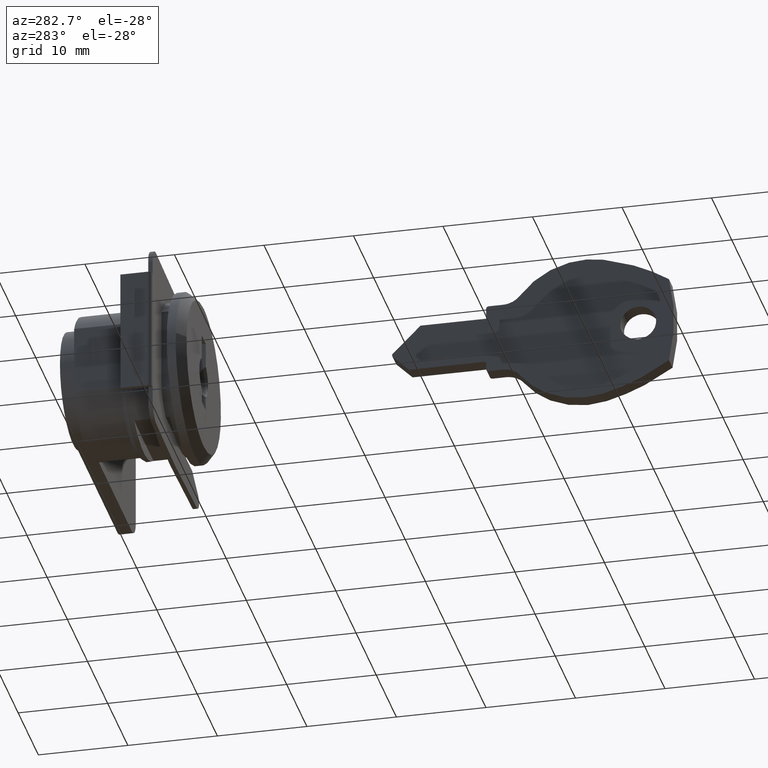
[diagram: clean part render]
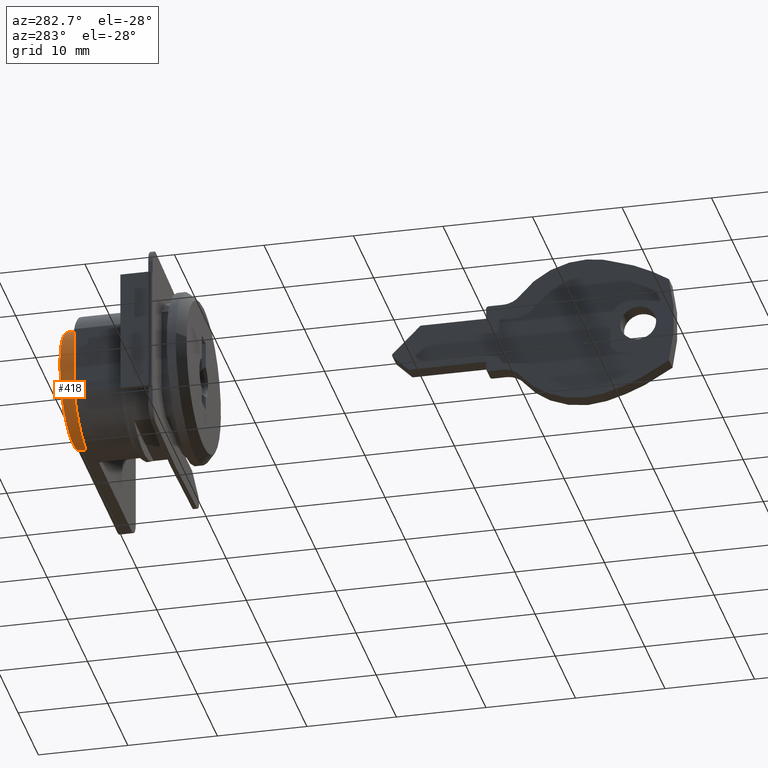
[diagram: same view with one face highlighted and labeled with its STEP entity id]
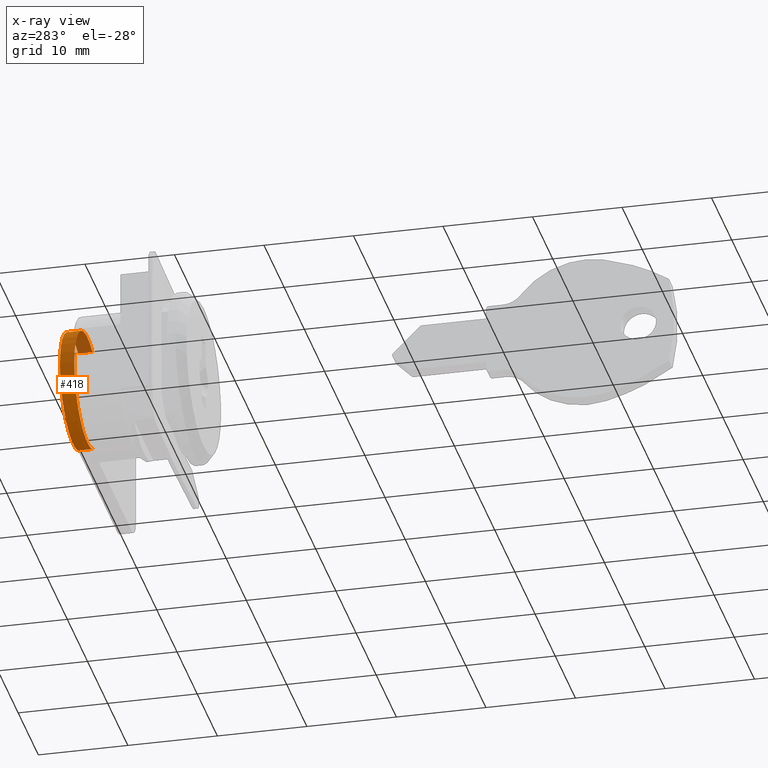
[diagram: x-ray of the same camera — body ghosted, the highlighted face saturated]
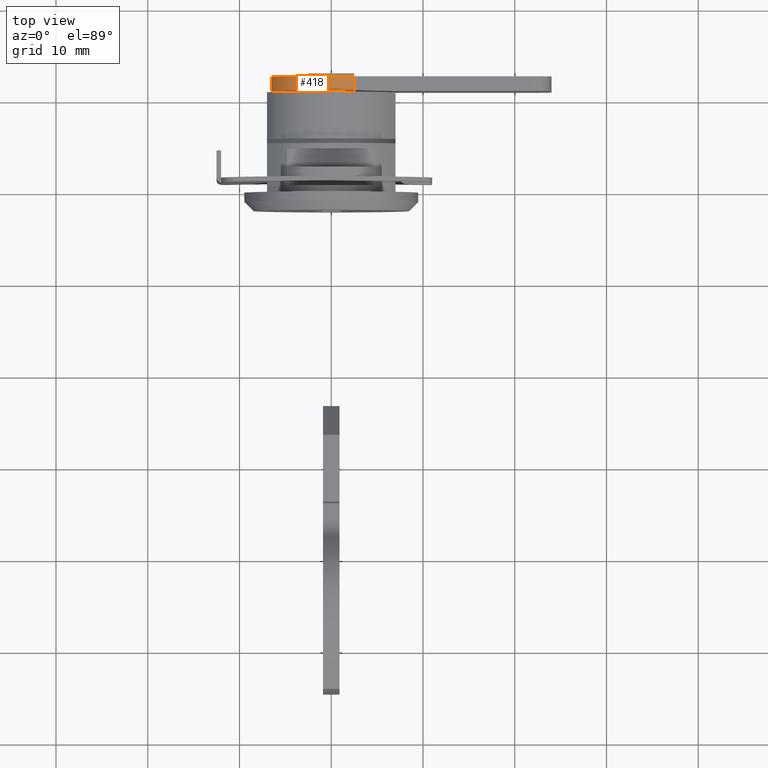
[diagram: same view with one face highlighted and labeled with its STEP entity id]
A machine part, auxiliary view. The second image highlights one B-rep face of the part: STEP entity #418.
The next image is the same camera in x-ray: the body ghosted, the highlighted face saturated — about 10% of this face is hidden behind the body in this view.
A second angle (top view) of the same face is appended — the face is thin or edge-on in the first view.
In plain terms, the highlighted face is a freeform B-spline surface patch.
Its self-contained STEP definition (entity closure, byte-faithful):
#289=CARTESIAN_POINT('',(2.500003670632160,11.000000000000121,5.999998470568620));
#290=VERTEX_POINT('',#289);
#296=CARTESIAN_POINT('',(2.500000000000000,11.000000000000121,-6.0));
#297=VERTEX_POINT('',#296);
#298=CARTESIAN_POINT('',(2.500003670632160,11.000000000000121,5.999998470568616));
#299=CARTESIAN_POINT('',(-2.110609236133333,11.000000000000119,7.921090492061310));
#300=CARTESIAN_POINT('',(-5.154034480202897,11.000000000000121,3.960546499774955));
#301=CARTESIAN_POINT('',(-8.197459724272463,11.000000000000119,0.000002507488599));
#302=CARTESIAN_POINT('',(-5.154036903153804,11.000000000000121,-3.960543346679687));
#303=CARTESIAN_POINT('',(-2.110614082035147,11.000000000000119,-7.921089200847972));
#304=CARTESIAN_POINT('',(2.499999999999994,11.000000000000121,-6.000000000000002));
#312=(BOUNDED_CURVE()B_SPLINE_CURVE(2,(#298,#299,#300,#301,#302,#303,#304),.UNSPECIFIED.,.F.,.U.)B_SPLINE_CURVE_WITH_KNOTS((3,2,2,3),(0.0,0.333333333333333,0.666666666666667,1.0),.UNSPECIFIED.)CURVE()GEOMETRIC_REPRESENTATION_ITEM()RATIONAL_B_SPLINE_CURVE((1.0,0.792928567950553,1.0,0.792928567950553,1.0,0.792928567950553,1.0))REPRESENTATION_ITEM(''));
#313=EDGE_CURVE('',#290,#297,#312,.T.);
#335=CARTESIAN_POINT('',(2.500000000000000,12.600000000000000,-6.0));
#336=VERTEX_POINT('',#335);
#342=CARTESIAN_POINT('',(2.500003670632160,12.600000000000000,5.999998470568620));
#343=VERTEX_POINT('',#342);
#344=CARTESIAN_POINT('',(2.500003670632160,12.600000000000000,5.999998470568616));
#345=CARTESIAN_POINT('',(-2.110609236133333,12.600000000000000,7.921090492061310));
#346=CARTESIAN_POINT('',(-5.154034480202897,12.600000000000000,3.960546499774955));
#347=CARTESIAN_POINT('',(-8.197459724272463,12.600000000000000,0.000002507488599));
#348=CARTESIAN_POINT('',(-5.154036903153804,12.600000000000000,-3.960543346679687));
#349=CARTESIAN_POINT('',(-2.110614082035147,12.600000000000000,-7.921089200847972));
#350=CARTESIAN_POINT('',(2.499999999999994,12.600000000000000,-6.000000000000002));
#358=(BOUNDED_CURVE()B_SPLINE_CURVE(2,(#344,#345,#346,#347,#348,#349,#350),.UNSPECIFIED.,.F.,.U.)B_SPLINE_CURVE_WITH_KNOTS((3,2,2,3),(0.0,0.333333333333333,0.666666666666667,1.0),.UNSPECIFIED.)CURVE()GEOMETRIC_REPRESENTATION_ITEM()RATIONAL_B_SPLINE_CURVE((1.0,0.792928567950553,1.0,0.792928567950553,1.0,0.792928567950553,1.0))REPRESENTATION_ITEM(''));
#359=EDGE_CURVE('',#343,#336,#358,.T.);
#382=CARTESIAN_POINT('',(2.734684894363354,12.640000000000001,-5.896736260724306));
#383=CARTESIAN_POINT('',(2.734684894363354,10.959000000000120,-5.896736260724306));
#384=CARTESIAN_POINT('',(-1.983861819776847,12.639999999999999,-8.085021076589896));
#385=CARTESIAN_POINT('',(-1.983861819776847,10.959000000000119,-8.085021076589896));
#386=CARTESIAN_POINT('',(-5.153565204559777,12.640000000000001,-3.961157114070423));
#387=CARTESIAN_POINT('',(-5.153565204559777,10.959000000000120,-3.961157114070423));
#388=CARTESIAN_POINT('',(-8.323268589342705,12.639999999999999,0.162706848449050));
#389=CARTESIAN_POINT('',(-8.323268589342705,10.959000000000119,0.162706848449050));
#390=CARTESIAN_POINT('',(-4.994818269800389,12.640000000000001,4.159542096393331));
#391=CARTESIAN_POINT('',(-4.994818269800389,10.959000000000120,4.159542096393331));
#392=CARTESIAN_POINT('',(-1.666367950258071,12.639999999999999,8.156377344337610));
#393=CARTESIAN_POINT('',(-1.666367950258071,10.959000000000119,8.156377344337610));
#394=CARTESIAN_POINT('',(2.963051448018912,12.640000000000001,5.785354450368016));
#395=CARTESIAN_POINT('',(2.963051448018912,10.959000000000120,5.785354450368016));
#403=(BOUNDED_SURFACE()B_SPLINE_SURFACE(1,2,((#382,#384,#386,#388,#390,#392,#394),(#383,#385,#387,#389,#391,#393,#395)),.UNSPECIFIED.,.F.,.F.,.U.)B_SPLINE_SURFACE_WITH_KNOTS((2,2),(3,2,2,3),(0.0,1.0),(0.0,9.122055181451085,18.244110362902170,27.366165544353262),.UNSPECIFIED.)GEOMETRIC_REPRESENTATION_ITEM()RATIONAL_B_SPLINE_SURFACE(((1.0,0.780794026676659,1.0,0.780794026676659,1.0,0.780794026676659,1.0),(1.0,0.780794026676659,1.0,0.780794026676659,1.0,0.780794026676659,1.0)))REPRESENTATION_ITEM('')SURFACE());
#404=ORIENTED_EDGE('',*,*,#313,.F.);
#405=CARTESIAN_POINT('',(2.500003670632160,12.600000000000000,5.999998470568620));
#406=CARTESIAN_POINT('',(2.500003670632160,11.000000000000121,5.999998470568620));
#407=QUASI_UNIFORM_CURVE('',1,(#405,#406),.UNSPECIFIED.,.F.,.U.);
#408=EDGE_CURVE('',#343,#290,#407,.T.);
#409=ORIENTED_EDGE('',*,*,#408,.F.);
#410=ORIENTED_EDGE('',*,*,#359,.T.);
#411=CARTESIAN_POINT('',(2.500000000000000,12.600000000000000,-6.0));
#412=CARTESIAN_POINT('',(2.500000000000000,11.000000000000121,-6.0));
#413=QUASI_UNIFORM_CURVE('',1,(#411,#412),.UNSPECIFIED.,.F.,.U.);
#414=EDGE_CURVE('',#336,#297,#413,.T.);
#415=ORIENTED_EDGE('',*,*,#414,.T.);
#416=EDGE_LOOP('',(#404,#409,#410,#415));
#417=FACE_OUTER_BOUND('',#416,.T.);
#418=ADVANCED_FACE('',(#417),#403,.T.);